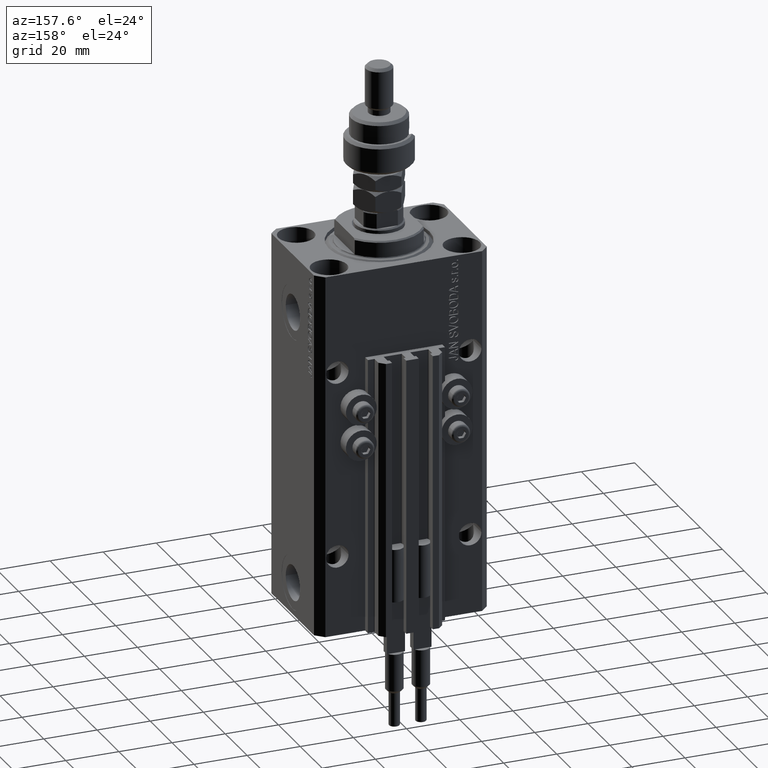
[diagram: clean part render]
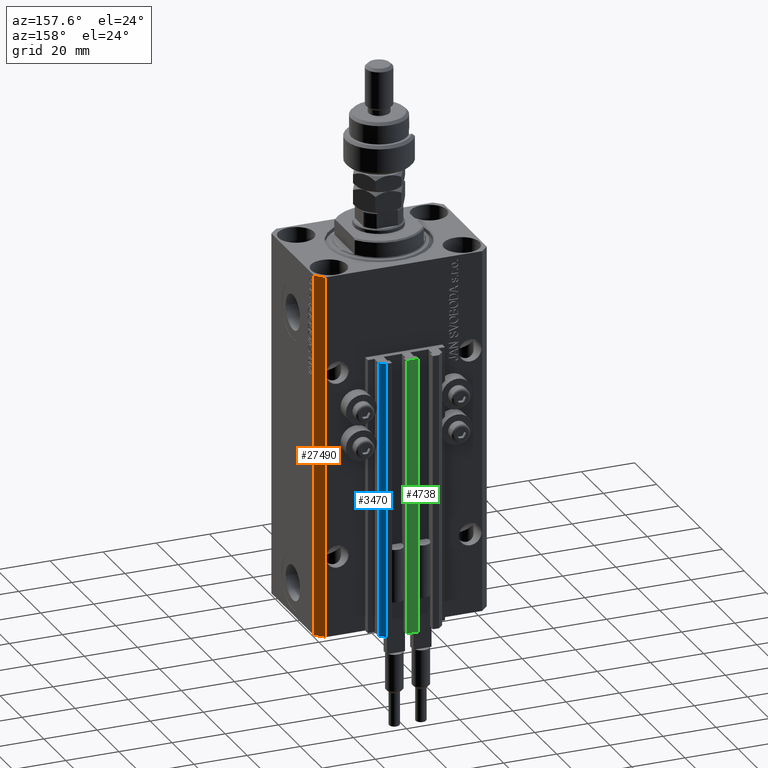
[diagram: same view with three faces highlighted in distinct colors, each labeled with its STEP entity id]
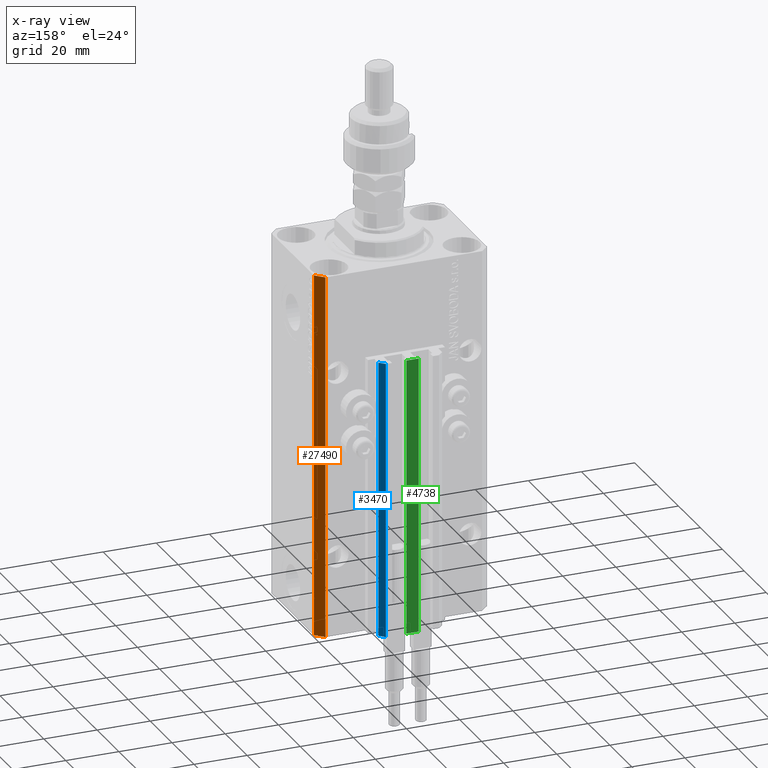
[diagram: x-ray of the same camera — body ghosted, the three highlighted faces saturated]
A machine part, auxiliary view with three faces highlighted in distinct colors.
The next image is the same camera in x-ray (body ghosted, the three faces saturated) — at least one of them is partly hidden behind the body in this view.
Their STEP definitions:

[orange] entity #27490 — the highlighted planar face has unit normal (0.7071, 0.7071, 0).
#390 = VECTOR ( 'NONE', #5776, 1000.000000000000000 ) ;
#664 = PLANE ( 'NONE',  #28826 ) ;
#1352 = CARTESIAN_POINT ( 'NONE',  ( 32.49999999999702993, 19.49999999999945999, -137.0000000000000000 ) ) ;
#1920 = EDGE_CURVE ( 'NONE', #41681, #33147, #37078, .T. ) ;
#5776 = DIRECTION ( 'NONE',  ( -0.7071067811865352493, 0.7071067811865597852, 0.000000000000000000 ) ) ;
#8723 = DIRECTION ( 'NONE',  ( -0.7071067811865353603, 0.7071067811865597852, 0.000000000000000000 ) ) ;
#13268 = CARTESIAN_POINT ( 'NONE',  ( 32.49999999999702993, 19.49999999999945999, -137.0000000000000000 ) ) ;
#13881 = CARTESIAN_POINT ( 'NONE',  ( 29.49999999999707967, 22.49999999999951328, -137.0000000000000000 ) ) ;
#13928 = CARTESIAN_POINT ( 'NONE',  ( 29.49999999999707967, 22.49999999999951328, 0.000000000000000000 ) ) ;
#13933 = VERTEX_POINT ( 'NONE', #13268 ) ;
#14116 = ORIENTED_EDGE ( 'NONE', *, *, #45262, .F. ) ;
#14315 = VECTOR ( 'NONE', #32043, 1000.000000000000000 ) ;
#14630 = LINE ( 'NONE', #18276, #29334 ) ;
#17802 = ORIENTED_EDGE ( 'NONE', *, *, #1920, .T. ) ;
#18276 = CARTESIAN_POINT ( 'NONE',  ( 32.49999999999702993, 19.49999999999945999, 0.000000000000000000 ) ) ;
#26556 = VERTEX_POINT ( 'NONE', #36510 ) ;
#26836 = DIRECTION ( 'NONE',  ( -0.7071067811865352493, 0.7071067811865597852, 0.000000000000000000 ) ) ;
#27328 = EDGE_LOOP ( 'NONE', ( #50945, #14116, #42777, #17802 ) ) ;
#27490 = ADVANCED_FACE ( 'NONE', ( #36261 ), #664, .T. ) ;
#28826 = AXIS2_PLACEMENT_3D ( 'NONE', #44316, #40414, #8723 ) ;
#29334 = VECTOR ( 'NONE', #26836, 1000.000000000000000 ) ;
#32043 = DIRECTION ( 'NONE',  ( 0.000000000000000000, 0.000000000000000000, 1.000000000000000000 ) ) ;
#32077 = VECTOR ( 'NONE', #40974, 1000.000000000000000 ) ;
#32783 = LINE ( 'NONE', #1352, #390 ) ;
#33147 = VERTEX_POINT ( 'NONE', #13928 ) ;
#36261 = FACE_OUTER_BOUND ( 'NONE', #27328, .T. ) ;
#36299 = CARTESIAN_POINT ( 'NONE',  ( 29.49999999999707967, 22.49999999999951328, -137.0000000000000000 ) ) ;
#36510 = CARTESIAN_POINT ( 'NONE',  ( 32.49999999999702993, 19.49999999999945999, 0.000000000000000000 ) ) ;
#37078 = LINE ( 'NONE', #36299, #32077 ) ;
#40414 = DIRECTION ( 'NONE',  ( 0.7071067811865597852, 0.7071067811865353603, -0.000000000000000000 ) ) ;
#40881 = LINE ( 'NONE', #44780, #14315 ) ;
#40974 = DIRECTION ( 'NONE',  ( 0.000000000000000000, 0.000000000000000000, 1.000000000000000000 ) ) ;
#41681 = VERTEX_POINT ( 'NONE', #13881 ) ;
#42777 = ORIENTED_EDGE ( 'NONE', *, *, #50283, .T. ) ;
#44316 = CARTESIAN_POINT ( 'NONE',  ( 32.49999999999702993, 19.49999999999945999, -137.0000000000000000 ) ) ;
#44780 = CARTESIAN_POINT ( 'NONE',  ( 32.49999999999702993, 19.49999999999945999, -137.0000000000000000 ) ) ;
#45262 = EDGE_CURVE ( 'NONE', #13933, #26556, #40881, .T. ) ;
#47427 = EDGE_CURVE ( 'NONE', #26556, #33147, #14630, .T. ) ;
#50283 = EDGE_CURVE ( 'NONE', #13933, #41681, #32783, .T. ) ;
#50945 = ORIENTED_EDGE ( 'NONE', *, *, #47427, .F. ) ;

[blue] entity #3470 — the highlighted planar face has unit normal (0.7071, 0.7071, 0).
#1205 = ORIENTED_EDGE ( 'NONE', *, *, #50177, .T. ) ;
#1223 = VECTOR ( 'NONE', #36164, 1000.000000000000000 ) ;
#2460 = FACE_OUTER_BOUND ( 'NONE', #23355, .T. ) ;
#3470 = ADVANCED_FACE ( 'NONE', ( #2460 ), #15611, .T. ) ;
#5119 = DIRECTION ( 'NONE',  ( 0.000000000000000000, 0.000000000000000000, 1.000000000000000000 ) ) ;
#7543 = VECTOR ( 'NONE', #5119, 1000.000000000000000 ) ;
#10271 = EDGE_CURVE ( 'NONE', #41506, #23145, #36542, .T. ) ;
#15611 = PLANE ( 'NONE',  #47056 ) ;
#18299 = DIRECTION ( 'NONE',  ( 0.7071067811865441310, 0.7071067811865509034, -0.000000000000000000 ) ) ;
#20372 = LINE ( 'NONE', #48949, #48089 ) ;
#21646 = ORIENTED_EDGE ( 'NONE', *, *, #48554, .F. ) ;
#22188 = CARTESIAN_POINT ( 'NONE',  ( 12.00000000000000178, 28.49999999999950973, -137.0000000000000000 ) ) ;
#22465 = CARTESIAN_POINT ( 'NONE',  ( 9.999999999999994671, 30.49999999999949551, -137.0000000000000000 ) ) ;
#23145 = VERTEX_POINT ( 'NONE', #40398 ) ;
#23287 = ORIENTED_EDGE ( 'NONE', *, *, #10271, .F. ) ;
#23355 = EDGE_LOOP ( 'NONE', ( #21646, #23287, #24327, #1205 ) ) ;
#23925 = CARTESIAN_POINT ( 'NONE',  ( 9.999999999999994671, 30.49999999999949551, -33.00000000000000000 ) ) ;
#24327 = ORIENTED_EDGE ( 'NONE', *, *, #35915, .T. ) ;
#25474 = CARTESIAN_POINT ( 'NONE',  ( 12.00000000000000178, 28.49999999999950973, -33.00000000000000000 ) ) ;
#30134 = LINE ( 'NONE', #25474, #41786 ) ;
#32300 = VERTEX_POINT ( 'NONE', #22465 ) ;
#33670 = CARTESIAN_POINT ( 'NONE',  ( 12.00000000000000178, 28.49999999999950973, -137.0000000000000000 ) ) ;
#35915 = EDGE_CURVE ( 'NONE', #41506, #32300, #20372, .T. ) ;
#36164 = DIRECTION ( 'NONE',  ( 0.000000000000000000, 0.000000000000000000, 1.000000000000000000 ) ) ;
#36542 = LINE ( 'NONE', #33670, #7543 ) ;
#38402 = VERTEX_POINT ( 'NONE', #23925 ) ;
#39810 = CARTESIAN_POINT ( 'NONE',  ( 9.999999999999994671, 30.49999999999949551, -137.0000000000000000 ) ) ;
#40398 = CARTESIAN_POINT ( 'NONE',  ( 12.00000000000000178, 28.49999999999950973, -33.00000000000000000 ) ) ;
#41506 = VERTEX_POINT ( 'NONE', #41919 ) ;
#41786 = VECTOR ( 'NONE', #45478, 1000.000000000000000 ) ;
#41919 = CARTESIAN_POINT ( 'NONE',  ( 12.00000000000000178, 28.49999999999950973, -137.0000000000000000 ) ) ;
#44025 = DIRECTION ( 'NONE',  ( -0.7071067811865507924, 0.7071067811865441310, 0.000000000000000000 ) ) ;
#45478 = DIRECTION ( 'NONE',  ( -0.7071067811865507924, 0.7071067811865441310, 0.000000000000000000 ) ) ;
#47056 = AXIS2_PLACEMENT_3D ( 'NONE', #22188, #18299, #49475 ) ;
#47587 = LINE ( 'NONE', #39810, #1223 ) ;
#48089 = VECTOR ( 'NONE', #44025, 1000.000000000000000 ) ;
#48554 = EDGE_CURVE ( 'NONE', #23145, #38402, #30134, .T. ) ;
#48949 = CARTESIAN_POINT ( 'NONE',  ( 12.00000000000000178, 28.49999999999950973, -137.0000000000000000 ) ) ;
#49475 = DIRECTION ( 'NONE',  ( -0.7071067811865509034, 0.7071067811865441310, 0.000000000000000000 ) ) ;
#50177 = EDGE_CURVE ( 'NONE', #32300, #38402, #47587, .T. ) ;

[green] entity #4738 — the highlighted planar face has unit normal (0, -1, 0).
#943 = VERTEX_POINT ( 'NONE', #8439 ) ;
#1357 = DIRECTION ( 'NONE',  ( 0.000000000000000000, 0.000000000000000000, 1.000000000000000000 ) ) ;
#2912 = DIRECTION ( 'NONE',  ( 1.000000000000000000, 0.000000000000000000, 0.000000000000000000 ) ) ;
#4738 = ADVANCED_FACE ( 'NONE', ( #19006 ), #46797, .F. ) ;
#4944 = VECTOR ( 'NONE', #32586, 1000.000000000000000 ) ;
#7961 = VERTEX_POINT ( 'NONE', #13514 ) ;
#8056 = VECTOR ( 'NONE', #23084, 1000.000000000000000 ) ;
#8339 = DIRECTION ( 'NONE',  ( 0.000000000000000000, -1.000000000000000000, 0.000000000000000000 ) ) ;
#8439 = CARTESIAN_POINT ( 'NONE',  ( 2.349999999999999645, 30.49999999999949907, -33.00000000000000000 ) ) ;
#13514 = CARTESIAN_POINT ( 'NONE',  ( 2.349999999999999645, 30.49999999999949907, -137.0000000000000000 ) ) ;
#16419 = CARTESIAN_POINT ( 'NONE',  ( 2.349999999999999645, 30.49999999999949907, -137.0000000000000000 ) ) ;
#18598 = EDGE_LOOP ( 'NONE', ( #25298, #49375, #29501, #50840 ) ) ;
#19006 = FACE_OUTER_BOUND ( 'NONE', #18598, .T. ) ;
#21020 = CARTESIAN_POINT ( 'NONE',  ( -2.350000000000003197, 30.49999999999949907, -33.00000000000000000 ) ) ;
#21621 = EDGE_CURVE ( 'NONE', #27753, #7961, #42391, .T. ) ;
#22829 = LINE ( 'NONE', #38688, #8056 ) ;
#23084 = DIRECTION ( 'NONE',  ( 1.000000000000000000, 0.000000000000000000, 0.000000000000000000 ) ) ;
#25244 = LINE ( 'NONE', #16419, #42204 ) ;
#25298 = ORIENTED_EDGE ( 'NONE', *, *, #26837, .T. ) ;
#26837 = EDGE_CURVE ( 'NONE', #40108, #943, #22829, .T. ) ;
#27055 = CARTESIAN_POINT ( 'NONE',  ( -2.350000000000003197, 30.49999999999949907, -137.0000000000000000 ) ) ;
#27753 = VERTEX_POINT ( 'NONE', #43484 ) ;
#28434 = CARTESIAN_POINT ( 'NONE',  ( -2.350000000000003197, 30.49999999999949907, -137.0000000000000000 ) ) ;
#29501 = ORIENTED_EDGE ( 'NONE', *, *, #21621, .F. ) ;
#30477 = EDGE_CURVE ( 'NONE', #7961, #943, #25244, .T. ) ;
#31331 = AXIS2_PLACEMENT_3D ( 'NONE', #27055, #8339, #37624 ) ;
#32586 = DIRECTION ( 'NONE',  ( 0.000000000000000000, 0.000000000000000000, 1.000000000000000000 ) ) ;
#33841 = CARTESIAN_POINT ( 'NONE',  ( -2.350000000000003197, 30.49999999999949907, -137.0000000000000000 ) ) ;
#35811 = EDGE_CURVE ( 'NONE', #27753, #40108, #44805, .T. ) ;
#37624 = DIRECTION ( 'NONE',  ( 0.000000000000000000, -0.000000000000000000, -1.000000000000000000 ) ) ;
#38688 = CARTESIAN_POINT ( 'NONE',  ( -2.350000000000003197, 30.49999999999949907, -33.00000000000000000 ) ) ;
#40108 = VERTEX_POINT ( 'NONE', #21020 ) ;
#42204 = VECTOR ( 'NONE', #1357, 1000.000000000000000 ) ;
#42391 = LINE ( 'NONE', #33841, #43491 ) ;
#43484 = CARTESIAN_POINT ( 'NONE',  ( -2.350000000000003197, 30.49999999999949907, -137.0000000000000000 ) ) ;
#43491 = VECTOR ( 'NONE', #2912, 1000.000000000000000 ) ;
#44805 = LINE ( 'NONE', #28434, #4944 ) ;
#46797 = PLANE ( 'NONE',  #31331 ) ;
#49375 = ORIENTED_EDGE ( 'NONE', *, *, #30477, .F. ) ;
#50840 = ORIENTED_EDGE ( 'NONE', *, *, #35811, .T. ) ;